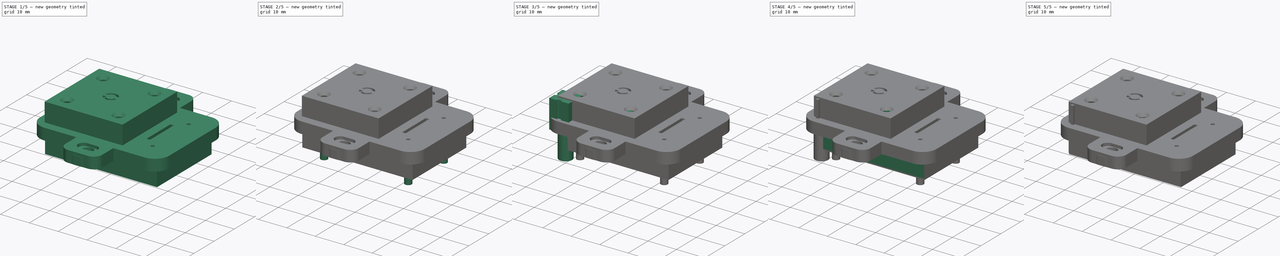
[diagram: build sequence overview — one tinted view per stage of 5, left to right]
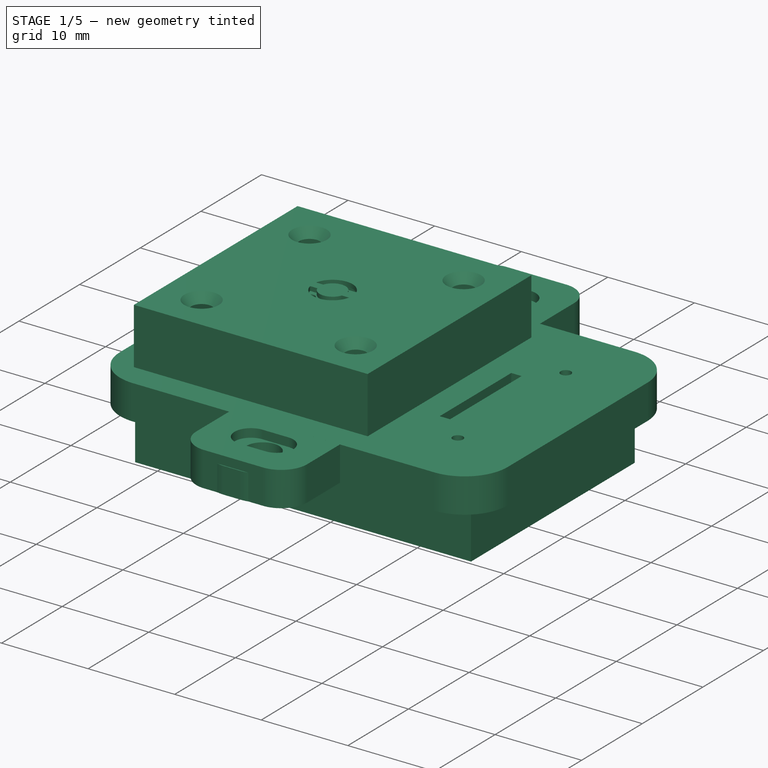
[diagram: stage 1 of 5 — iso view after this stage's code; geometry added in this stage tinted green]
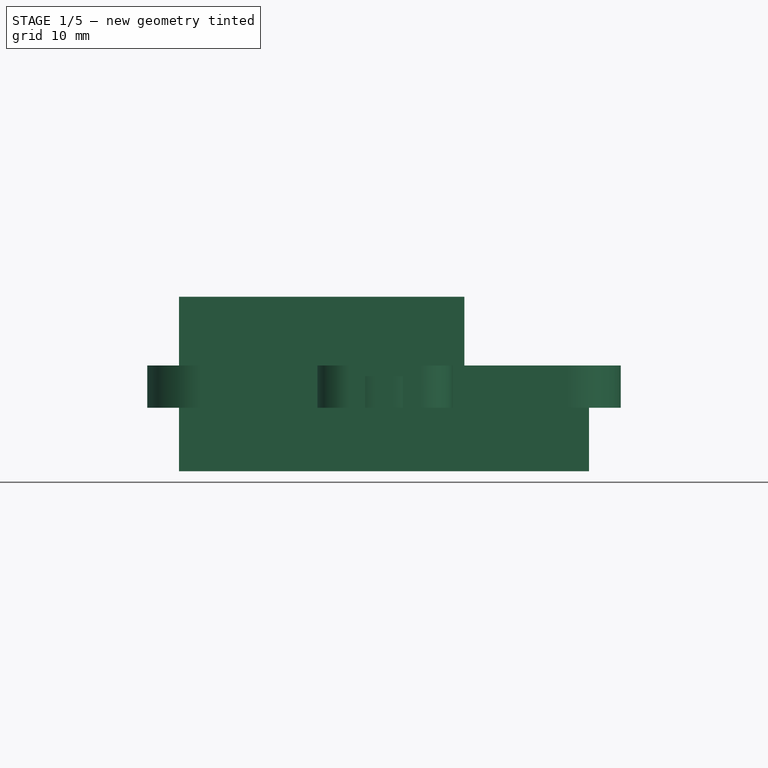
[diagram: stage 1 of 5 — front view after this stage's code; geometry added in this stage tinted green]
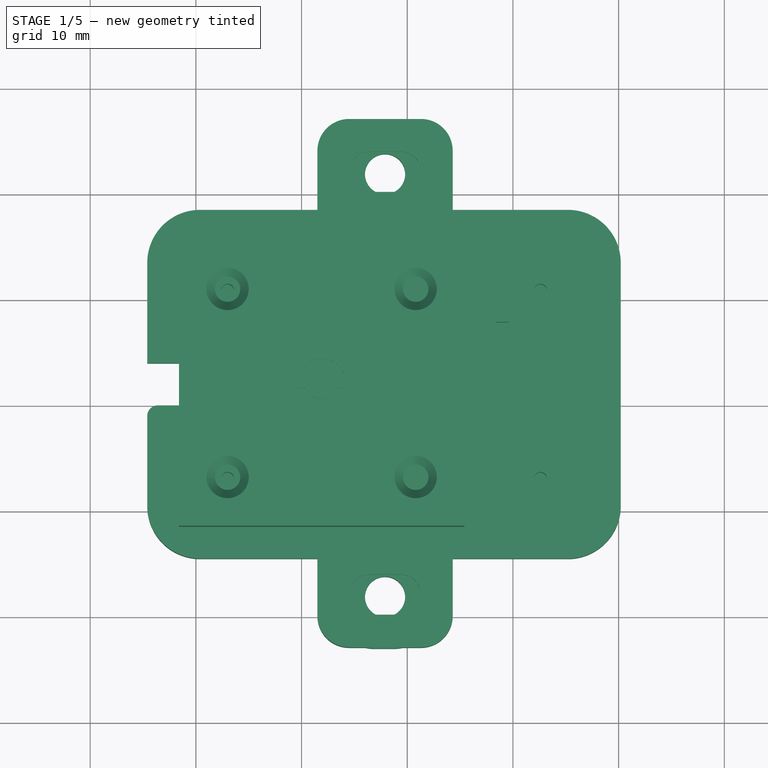
[diagram: stage 1 of 5 — top view after this stage's code; geometry added in this stage tinted green]
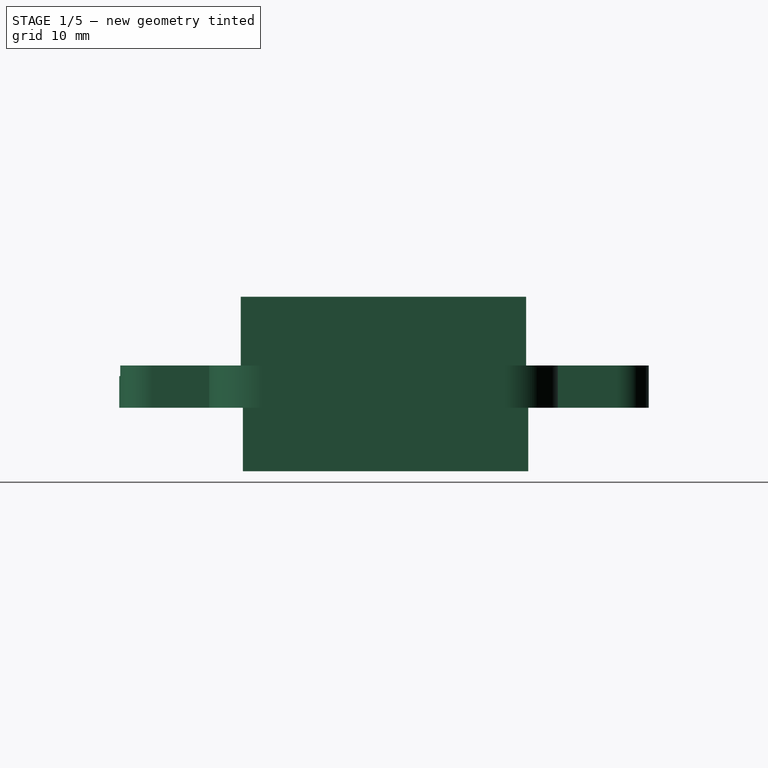
[diagram: stage 1 of 5 — right view after this stage's code; geometry added in this stage tinted green]
FCSTD DOCUMENT  (FreeCAD 0.19R)
Label: btn_plate
License: FreeArt
LicenseURL: http://artlibre.org/licence/lal
objects: Part::Box×17, Part::MultiFuse×15, Part::FeaturePython×12, Part::Cut×9, Part::Cylinder×6, App::Part×5, Part::Feature×5, PartDesign::Body×4, PartDesign::FeatureBase×3, Part::Fillet×3, Spreadsheet::Sheet×1, Sketcher::SketchObject×1, PartDesign::Pad×1, Part::Cone×1
note: 78 computed .brp shape members not serialized (recipe doc carries the construction recipe); baked Part::Feature solids carry a one-line shape summary decoded from their .brp

FEATURE [Part::Cylinder] Cylinder  label="bolt hole"
  Angle = 360
  AttacherType = Attacher::AttachEngine3D
  Height = 10
  Radius = 1.2
  expr: Radius = <<p>>.bolt_hole_r
FEATURE [PartDesign::Body] Body003  label="mesh extraction fusion clone"
  BaseFeature = -> Fusion003
  Group = -> [Clone003]
  Origin = -> Origin007
  Tip = -> Clone003
FEATURE [Part::Box] Box007  label="thin top plate under"
  AttacherType = Attacher::AttachEngine3D
  Height = 0.5
  Length = 36.4
  Placement = pos=(-0.4,-0.4,0) rot=(0,0,1;0rad)
  Width = 24.6
  expr: .Placement.Base.x = -+<<p>>.thin_cover_gap_size
  expr: .Placement.Base.y = -+<<p>>.thin_cover_gap_size
  expr: Height = <<p>>.thin_cover_under
  expr: Length = 2 * <<p>>.side_border + (<<p>>.btn_body_side + <<p>>.inter_btn_dist) * <<p>>.btn_count_x + <<p>>.thin_cover_gap_size * 2
  expr: Width = 2 * <<p>>.side_border + (<<p>>.btn_body_side + <<p>>.inter_btn_dist) * <<p>>.btn_count_y + <<p>>.thin_cover_gap_size * 2
FEATURE [Part::Box] Box012  label="base cube"
  AttacherType = Attacher::AttachEngine3D
  Height = 4
  Length = 44.8
  Placement = pos=(-4.6,-4.6,0) rot=(0,0,1;0rad)
  Width = 33
  expr: .Placement.Base.y = -(<<p>>.base_extra_y / 2 + <<p>>.side_wall)
  expr: .Placement.Base.x = -(<<p>>.base_extra_x / 2 + <<p>>.side_wall)
  expr: Width = <<p>>.outer_border_cube_y + <<p>>.base_extra_y
  expr: Length = <<p>>.outer_border_cube_x + <<p>>.base_extra_x
  expr: Height = <<p>>.base_z
FEATURE [Part::Cylinder] Cylinder007  label="bolt hole002"
  Angle = 360
  AttacherType = Attacher::AttachEngine3D
  Height = 10
  Radius = 0.6
  expr: Radius = <<p>>.hole_r
FEATURE [Part::FeaturePython] Array009  label="bolt hole array002"  # Draft array (typed FeaturePython)
  Angle = 360
  ArrayType = 0
  Axis = (0,0,1)
  Base = -> Cylinder007
  Center = (0,0,0)
  Fuse = false
  IntervalAxis = (0,0,0)
  IntervalX = (29.6,0,0)
  IntervalY = (0,17.8,0)
  IntervalZ = (0,0,1)
  NumberPolar = 1
  NumberX = 2
  NumberY = 2
  NumberZ = 1
  Placement = pos=(3,3,0) rot=(0,0,1;0rad)
  expr: .Placement.Base.y = <<p>>.side_border / 2
  expr: .Placement.Base.x = <<p>>.side_border / 2
  expr: .IntervalY.y = <<p>>.side_border + (<<p>>.btn_body_side + <<p>>.inter_btn_dist) * <<p>>.btn_count_y
  expr: .IntervalX.x = <<p>>.side_border + (<<p>>.btn_body_side + <<p>>.inter_btn_dist) * <<p>>.btn_count_x
FEATURE [Part::Box] Box014  label="base extraction cube"
  AttacherType = Attacher::AttachEngine3D
  Height = 10
  Length = 23.6
  Placement = pos=(6,6,0) rot=(0,0,1;0rad)
  Width = 11.8
  expr: .Placement.Base.y = <<p>>.side_border
  expr: .Placement.Base.x = <<p>>.side_border
  expr: Width = <<p>>.btn_area_y
  expr: Length = <<p>>.btn_area_x
FEATURE [Part::Box] Box015  label="wire channel"
  AttacherType = Attacher::AttachEngine3D
  Height = 10
  Length = 10.6
  Placement = pos=(-4.6,9.9,0) rot=(0,0,1;0rad)
  Width = 4
  expr: Width = <<p>>.wire_channel_width
  expr: .Placement.Base.y = (<<p>>.outer_border_cube_y + <<p>>.base_extra_y - <<p>>.wire_channel_width) / 2 - (<<p>>.base_extra_y / 2 + <<p>>.side_wall)
  expr: .Placement.Base.x = -(<<p>>.base_extra_x / 2 + <<p>>.side_wall)
  expr: Length = (<<p>>.outer_border_cube_x + <<p>>.base_extra_x - <<p>>.btn_area_x) / 2
FEATURE [Part::MultiFuse] Fusion010  label="base extract fusion"
  Shapes = -> [Array009,Box014,Box015]
FEATURE [App::Part] Part001  label="x btn mesh plate part"
  Group = -> [Box005,Array002,Cut001,Fusion001]
  Origin = -> Origin001
FEATURE [Part::Fillet] Fillet  label="base cube fillet"
  Base = -> Box012
  Edges = 4 edges r=5: [Edge1,Edge3,Edge5,Edge7]
FEATURE [App::Part] Part003  label="top cover plate"
  Group = -> [Fusion005]
  Origin = -> Origin005
  Placement = pos=(0,0,5) rot=(0,0,1;0rad)
FEATURE [Part::Feature] Fillet003001  label="base cut fillet001"
  shape: bbox 44.8 x 50 x 4 mm, 46 faces (baked)
FEATURE [Part::Feature] Fusion005001  label="top cover plate fusion001"
  Placement = pos=(0,24,-5) rot=(1,0,0;3.14159rad)
  shape: bbox 38.8 x 27 x 6.5 mm, 37 faces (baked)
FEATURE [Part::MultiFuse] Fusion005002  label="2 buttons mockup"
  Shapes = -> [Fusion005001,Fillet003001]
FEATURE [App::Part] Part004  label="base part"
  Group = -> [Fillet003]
  Origin = -> Origin014
FEATURE [Part::Feature] Fusion005003  label="top cover plate fusion002"
  Placement = pos=(0,0,9.5) rot=(0,0,1;0rad)
  shape: bbox 27 x 27 x 6.5 mm, 29 faces (baked)
FEATURE [Part::Feature] Fillet003002  label="base cut fillet002"
  shape: bbox 33 x 50 x 4 mm, 55 faces (baked)
FEATURE [Part::MultiFuse] Fusion005004  label="1 button mockup"
  Shapes = -> [Fusion005003,Fillet003002]
FEATURE [Part::Cut] Cut002003  label="base cut001"
  Base = -> Fillet
  Tool = -> Fusion010
FEATURE [Part::Fillet] Fillet003003  label="base cut fillet no ears"
  Base = -> Cut002003
  Edges = 4 edges r=1.6: [Edge2,Edge24,Edge49,Edge50]
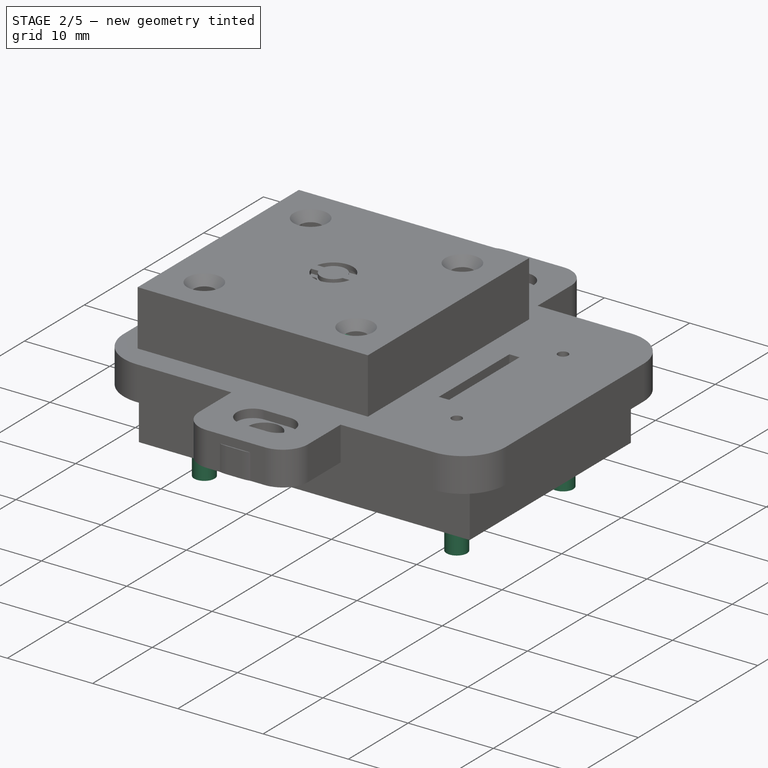
[diagram: stage 2 of 5 — iso view after this stage's code; geometry added in this stage tinted green]
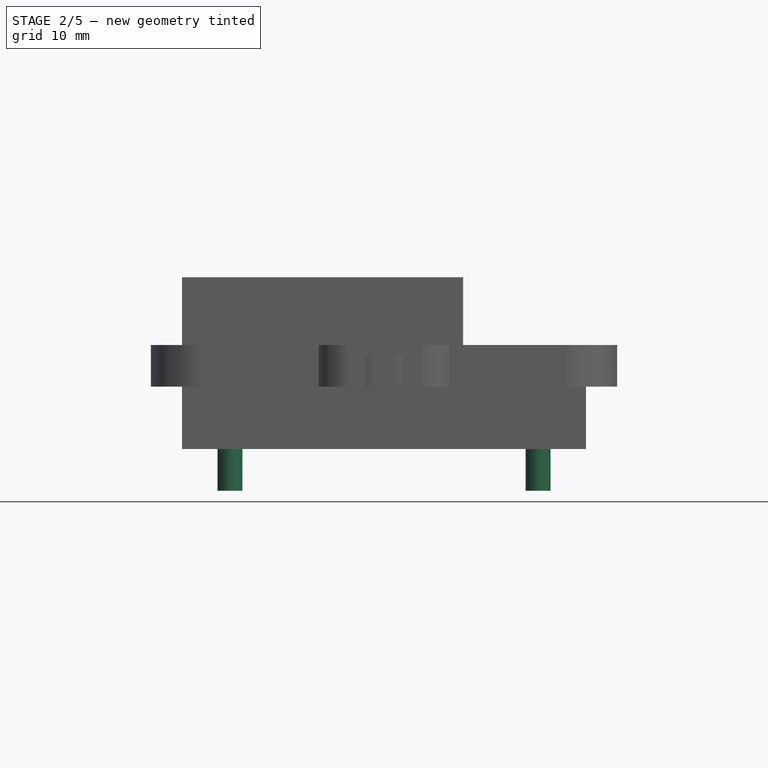
[diagram: stage 2 of 5 — front view after this stage's code; geometry added in this stage tinted green]
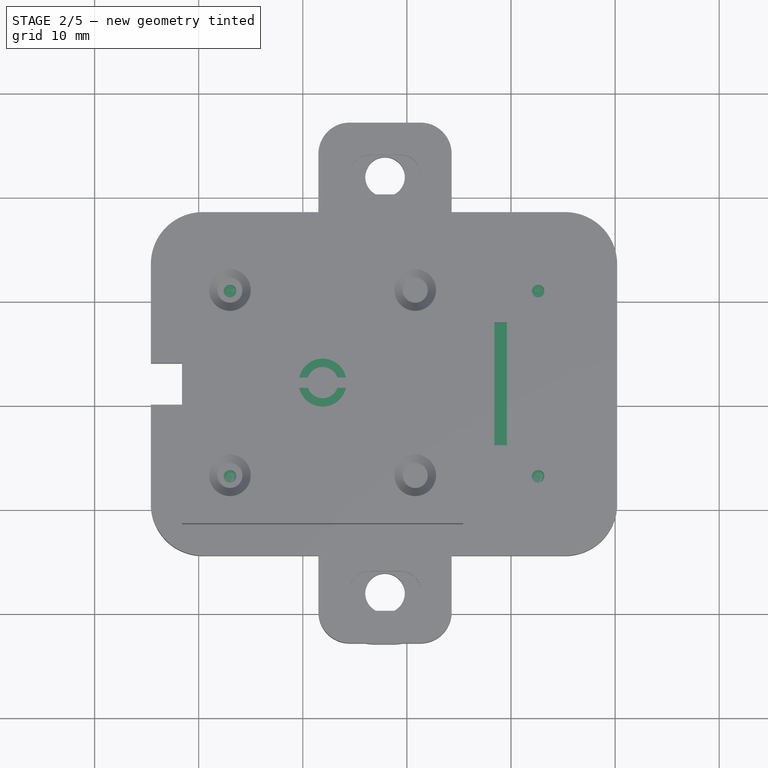
[diagram: stage 2 of 5 — top view after this stage's code; geometry added in this stage tinted green]
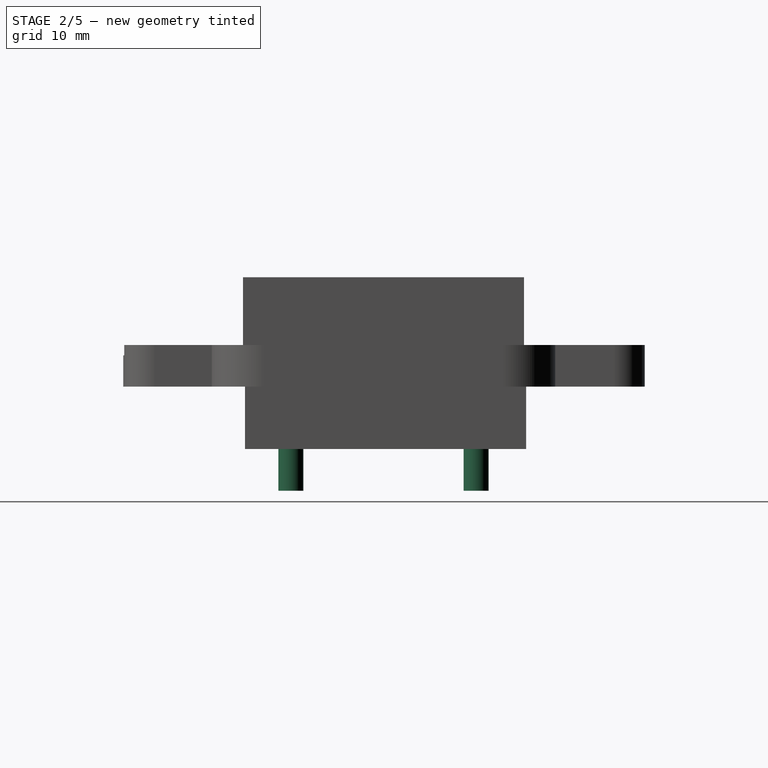
[diagram: stage 2 of 5 — right view after this stage's code; geometry added in this stage tinted green]
FEATURE [Part::FeaturePython] Array001  label="bolt hole array"  # Draft array (typed FeaturePython)
  Angle = 360
  ArrayType = 0
  Axis = (0,0,1)
  Base = -> Cylinder
  Center = (0,0,0)
  Fuse = false
  IntervalAxis = (0,0,0)
  IntervalX = (29.6,0,0)
  IntervalY = (0,17.8,0)
  IntervalZ = (0,0,1)
  NumberPolar = 1
  NumberX = 2
  NumberY = 2
  NumberZ = 1
  Placement = pos=(3,3,0) rot=(0,0,1;0rad)
  expr: .Placement.Base.y = <<p>>.side_border / 2
  expr: .Placement.Base.x = <<p>>.side_border / 2
  expr: .IntervalY.y = <<p>>.side_border + (<<p>>.btn_body_side + <<p>>.inter_btn_dist) * <<p>>.btn_count_y
  expr: .IntervalX.x = <<p>>.side_border + (<<p>>.btn_body_side + <<p>>.inter_btn_dist) * <<p>>.btn_count_x
FEATURE [Part::Box] Box003  label="internal hole cube"
  AttacherType = Attacher::AttachEngine3D
  Height = 10
  Length = 23.6
  Placement = pos=(6,6,0) rot=(0,0,1;0rad)
  Width = 11.8
  expr: .Placement.Base.y = <<p>>.side_border
  expr: .Placement.Base.x = <<p>>.side_border
  expr: Length = <<p>>.btn_area_x
  expr: Width = <<p>>.btn_area_y
FEATURE [PartDesign::FeatureBase] Clone001
  BaseFeature = -> Array001
  Placement = pos=(3,3,0) rot=(0,0,1;0rad)
  expr: .Placement.Base.x = <<p>>.side_border / 2
  expr: .Placement.Base.y = <<p>>.side_border / 2
FEATURE [PartDesign::Body] Body001  label="bolt hole array clone"
  BaseFeature = -> Array001
  Group = -> [Clone001]
  Origin = -> Origin004
  Tip = -> Clone001
FEATURE [Part::MultiFuse] Fusion003  label="mesh extraction fusion"
  Shapes = -> [Box003,Body001]
FEATURE [PartDesign::Body] Body  label="mesh border cut clone"
  BaseFeature = -> Cut001
  Group = -> [Clone]
  Origin = -> Origin002
  Tip = -> Clone
FEATURE [Part::Box] Box006  label="thin top plate"
  AttacherType = Attacher::AttachEngine3D
  Height = 0.5
  Length = 36.4
  Placement = pos=(-0.4,-0.4,0.5) rot=(0,0,1;0rad)
  Width = 24.6
  expr: .Placement.Base.y = -+<<p>>.thin_cover_gap_size
  expr: .Placement.Base.x = -+<<p>>.thin_cover_gap_size
  expr: .Placement.Base.z = <<p>>.thin_cover_under
  expr: Height = <<p>>.thin_cover_z
  expr: Length = 2 * <<p>>.side_border + (<<p>>.btn_body_side + <<p>>.inter_btn_dist) * <<p>>.btn_count_x + <<p>>.thin_cover_gap_size * 2
  expr: Width = 2 * <<p>>.side_border + (<<p>>.btn_body_side + <<p>>.inter_btn_dist) * <<p>>.btn_count_y + <<p>>.thin_cover_gap_size * 2
FEATURE [PartDesign::FeatureBase] Clone003
  BaseFeature = -> Fusion003
FEATURE [Part::Cut] Cut003  label="thin top plate border cut"
  Base = -> Box007
  Tool = -> Body003
FEATURE [Part::Cone] Cone
  Angle = 360
  AttacherType = Attacher::AttachEngine3D
  Height = 1
  Radius1 = 1.2
  Radius2 = 2
  expr: Height = <<p>>.bolt_head_z
  expr: Radius2 = <<p>>.bolt_head_r
  expr: Radius1 = <<p>>.bolt_hole_r
FEATURE [Part::Cylinder] Cylinder008  label="bolt hole003"
  Angle = 360
  AttacherType = Attacher::AttachEngine3D
  Height = 10
  Placement = pos=(0,0,-10) rot=(0,0,1;0rad)
  Radius = 1.2
  expr: .Placement.Base.z = -10
  expr: Radius = <<p>>.bolt_hole_r
FEATURE [Part::MultiFuse] Fusion011  label="bolt top fusion"
  Shapes = -> [Cone,Cylinder008]
FEATURE [Part::FeaturePython] Array012  label="bolt hole fusion array"  # Draft array (typed FeaturePython)
  Angle = 360
  ArrayType = 0
  Axis = (0,0,1)
  Base = -> Fusion011
  Center = (0,0,0)
  Fuse = false
  IntervalAxis = (0,0,0)
  IntervalX = (29.6,0,0)
  IntervalY = (0,17.8,0)
  IntervalZ = (0,0,1)
  NumberPolar = 1
  NumberX = 2
  NumberY = 2
  NumberZ = 1
  Placement = pos=(3,3,0) rot=(0,0,1;0rad)
  expr: .Placement.Base.y = <<p>>.side_border / 2
  expr: .Placement.Base.x = <<p>>.side_border / 2
  expr: .IntervalY.y = <<p>>.side_border + (<<p>>.btn_body_side + <<p>>.inter_btn_dist) * <<p>>.btn_count_y
  expr: .IntervalX.x = <<p>>.side_border + (<<p>>.btn_body_side + <<p>>.inter_btn_dist) * <<p>>.btn_count_x
FEATURE [Part::MultiFuse] Fusion012  label="thin top plate fusion"
  Shapes = -> [Cut003,Box006]
FEATURE [Part::Feature] Cut002002  label="attach plane y dir002"
  Placement = pos=(11.5,-13,0) rot=(0,0,1;0rad)
  shape: bbox 12.8 x 50 x 4 mm, 20 faces (baked)
FEATURE [Part::MultiFuse] Fusion009  label="base fusion"
  Shapes = -> [Fillet,Cut002002]
FEATURE [Part::Cut] Cut008  label="base cut"
  Base = -> Fusion009
  Tool = -> Fusion010
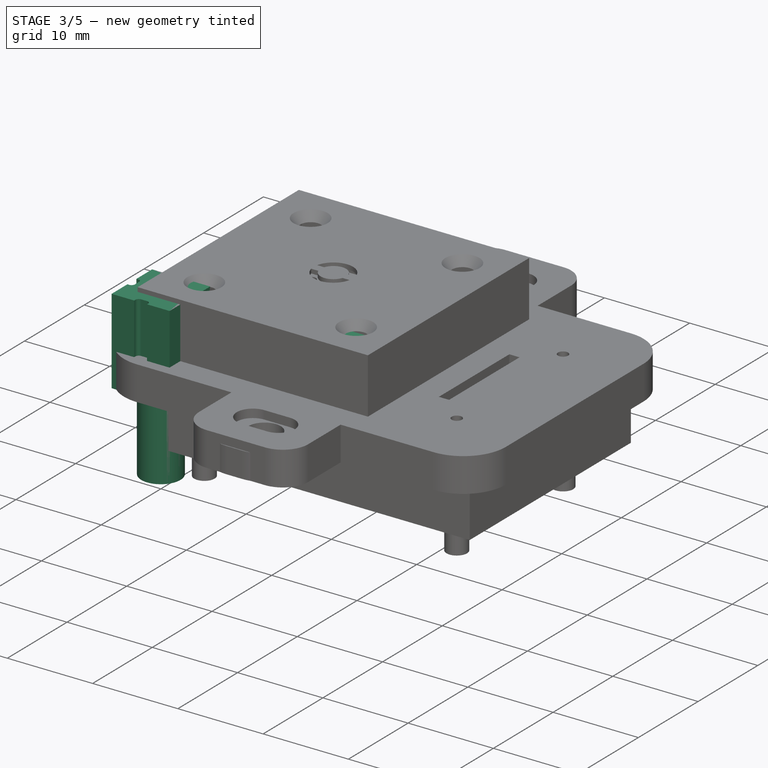
[diagram: stage 3 of 5 — iso view after this stage's code; geometry added in this stage tinted green]
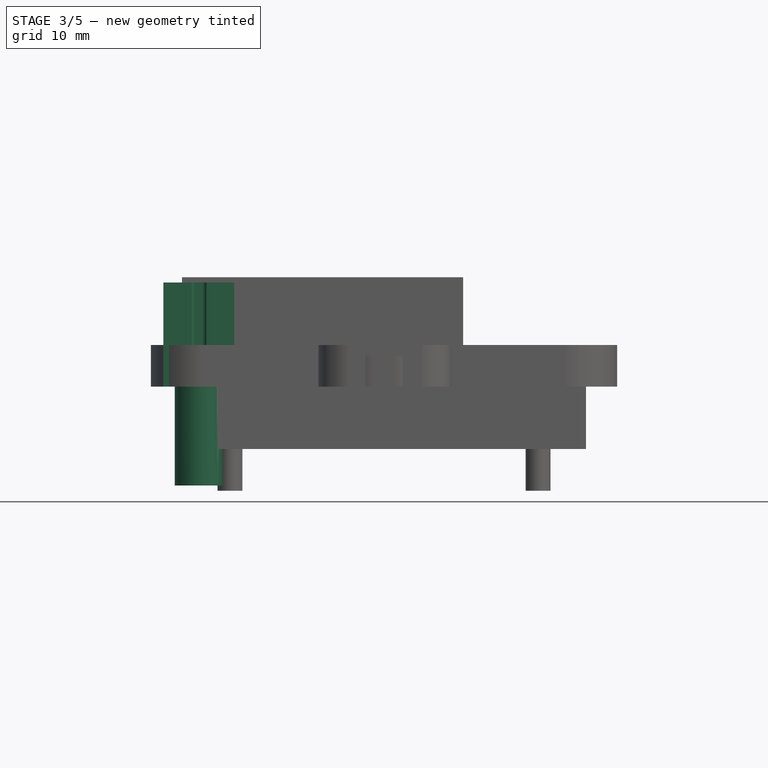
[diagram: stage 3 of 5 — front view after this stage's code; geometry added in this stage tinted green]
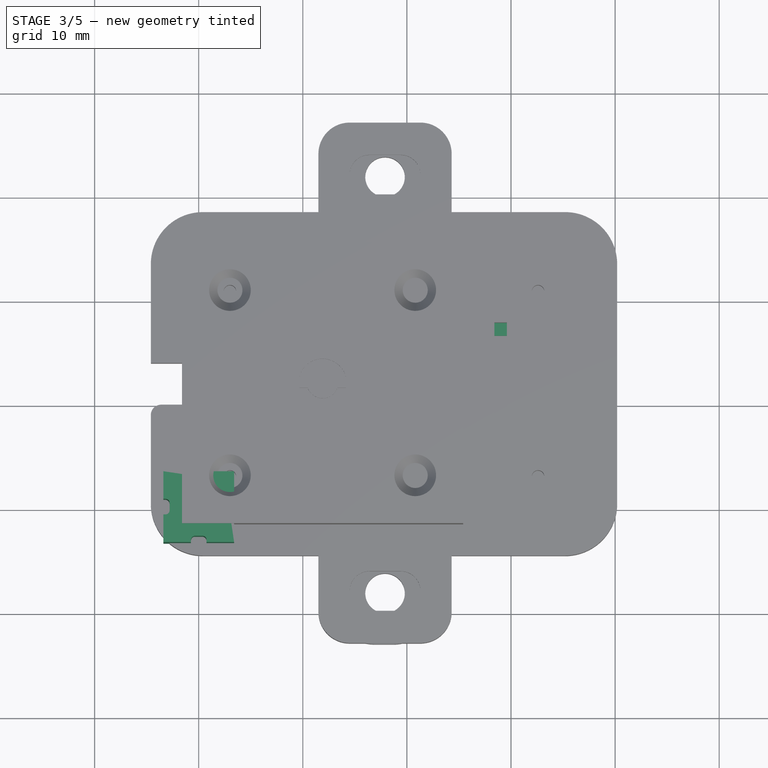
[diagram: stage 3 of 5 — top view after this stage's code; geometry added in this stage tinted green]
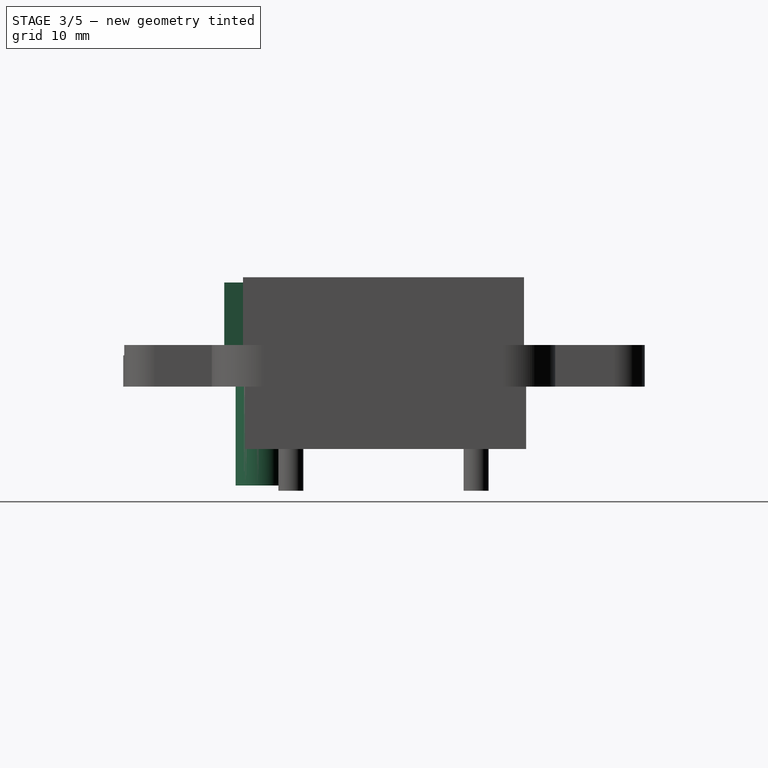
[diagram: stage 3 of 5 — right view after this stage's code; geometry added in this stage tinted green]
FEATURE [Part::Cylinder] Cylinder002  label="bolt hole001"
  Angle = 360
  AttacherType = Attacher::AttachEngine3D
  Height = 10
  Radius = 1.2
  expr: Radius = <<p>>.bolt_hole_r
FEATURE [Sketcher::SketchObject] Sketch001
  FullyConstrained = true
  MapMode = 5
  Support = -> [XY_Plane013]
  expr: Constraints[64] = <<p>>.btn_holding_pin_size
  expr: Constraints[63] = <<p>>.btn_holding_pin_size
  expr: Constraints[4] = <<p>>.btn_body_side / 2
  expr: Constraints[3] = <<p>>.btn_body_side / 2
  expr: Constraints[5] = (<<p>>.btn_body_side - <<p>>.btn_holding_pin_width) / 2
  sketch-geometry (28):
    g0: LineSegment StartX=-3.4 StartY=-0.75 StartZ=0 EndX=-3.4 EndY=-3.4 EndZ=0
    g1: LineSegment StartX=-3.4 StartY=-3.4 StartZ=0 EndX=-0.75 EndY=-3.4 EndZ=0
    g2: LineSegment StartX=-3.4 StartY=0.75 StartZ=0 EndX=-3.4 EndY=3.4 EndZ=0
    g3: LineSegment StartX=-3.4 StartY=3.4 StartZ=0 EndX=-0.75 EndY=3.4 EndZ=0
    g4: LineSegment StartX=0.75 StartY=3.4 StartZ=0 EndX=3.4 EndY=3.4 EndZ=0
    g5: LineSegment StartX=3.4 StartY=3.4 StartZ=0 EndX=3.4 EndY=0.75 EndZ=0
    g6: LineSegment StartX=3.4 StartY=-0.75 StartZ=0 EndX=3.4 EndY=-3.4 EndZ=0
    g7: LineSegment StartX=3.4 StartY=-3.4 StartZ=0 EndX=0.75 EndY=-3.4 EndZ=0
    g8: LineSegment StartX=-3.4 StartY=0.75 StartZ=0 EndX=-3.19743 EndY=0.75 EndZ=0
    g9: LineSegment StartX=-2.8 StartY=0.352575 StartZ=0 EndX=-2.8 EndY=-0.352575 EndZ=0
    g10: LineSegment StartX=-3.19743 StartY=-0.75 StartZ=0 EndX=-3.4 EndY=-0.75 EndZ=0
    g11: ArcOfCircle CenterX=-3.19743 CenterY=0.352575 CenterZ=0 NormalX=0 NormalY=0 NormalZ=1 AngleXU=0 Radius=0.397425 StartAngle=0 EndAngle=1.5708
    g12: ArcOfCircle CenterX=-3.19743 CenterY=-0.352575 CenterZ=0 NormalX=0 NormalY=0 NormalZ=1 AngleXU=0 Radius=0.397425 StartAngle=4.71239 EndAngle=6.28319
    g13: LineSegment StartX=3.4 StartY=0.75 StartZ=0 EndX=3.19743 EndY=0.75 EndZ=0
    g14: LineSegment StartX=2.8 StartY=0.352575 StartZ=0 EndX=2.8 EndY=-0.352575 EndZ=0
    g15: LineSegment StartX=3.19743 StartY=-0.75 StartZ=0 EndX=3.4 EndY=-0.75 EndZ=0
    g16: LineSegment StartX=0.75 StartY=3.4 StartZ=0 EndX=0.75 EndY=3.19743 EndZ=0
    g17: LineSegment StartX=0.352575 StartY=2.8 StartZ=0 EndX=-0.352575 EndY=2.8 EndZ=0
    g18: LineSegment StartX=-0.75 StartY=3.19743 StartZ=0 EndX=-0.75 EndY=3.4 EndZ=0
    g19: LineSegment StartX=-0.75 StartY=-3.4 StartZ=0 EndX=-0.75 EndY=-3.19743 EndZ=0
    g20: LineSegment StartX=-0.352575 StartY=-2.8 StartZ=0 EndX=0.352575 EndY=-2.8 EndZ=0
    g21: LineSegment StartX=0.75 StartY=-3.19743 StartZ=0 EndX=0.75 EndY=-3.4 EndZ=0
    g22: ArcOfCircle CenterX=3.19743 CenterY=0.352575 CenterZ=0 NormalX=0 NormalY=0 NormalZ=1 AngleXU=0 Radius=0.397425 StartAngle=1.5708 EndAngle=3.14159
    g23: ArcOfCircle CenterX=3.19743 CenterY=-0.352575 CenterZ=0 NormalX=0 NormalY=0 NormalZ=1 AngleXU=0 Radius=0.397425 StartAngle=3.14159 EndAngle=4.71239
    g24: ArcOfCircle CenterX=0.352575 CenterY=-3.19743 CenterZ=0 NormalX=0 NormalY=0 NormalZ=1 AngleXU=0 Radius=0.397425 StartAngle=1.8e-15 EndAngle=1.5708
    g25: ArcOfCircle CenterX=-0.352575 CenterY=-3.19743 CenterZ=0 NormalX=0 NormalY=0 NormalZ=1 AngleXU=0 Radius=0.397425 StartAngle=1.5708 EndAngle=3.14159
    g26: ArcOfCircle CenterX=-0.352575 CenterY=3.19743 CenterZ=0 NormalX=0 NormalY=0 NormalZ=1 AngleXU=0 Radius=0.397425 StartAngle=3.14159 EndAngle=4.71239
    g27: ArcOfCircle CenterX=0.352575 CenterY=3.19743 CenterZ=0 NormalX=0 NormalY=0 NormalZ=1 AngleXU=0 Radius=0.397425 StartAngle=4.71239 EndAngle=6.28319
  constraints (65):
    c: Coincident(g0,g1)
    c: Horizontal(g1)
    c: Vertical(g0)
    c: DistanceY(g1,g-1) = 3.4
    c: DistanceX(g0,g-1) = 3.4
    c: DistanceY(g0,g0) = 2.65
    c: Coincident(g2,g3)
    c: Horizontal(g3)
    c: Coincident(g4,g5)
    c: Vertical(g5)
    c: Coincident(g6,g7)
    c: Symmetric(g7,g1,g-2)
    c: Symmetric(g5,g6,g-1)
    c: Symmetric(g4,g3,g-2)
    c: Symmetric(g2,g0,g-1)
    c: Symmetric(g6,g0,g-2)
    c: Equal(g0,g1)
    c: Equal(g1,g2)
    c: Equal(g2,g3)
    c: Equal(g3,g4)
    c: Equal(g4,g5)
    c: Equal(g5,g6)
    c: Equal(g6,g7)
    c: Coincident(g2,g8)
    c: Coincident(g10,g0)
    c: Horizontal(g10)
    c: Tangent(g9,g11) = 1.5708
    c: Tangent(g8,g11) = 1.5708
    c: Tangent(g10,g12) = 1.5708
    c: Tangent(g9,g12) = 1.5708
    c: Symmetric(g9,g9,g-1)
    c: Equal(g10,g8)
    c: Coincident(g5,g13)
    c: Horizontal(g13)
    c: Vertical(g14)
    c: Coincident(g15,g6)
    c: Coincident(g4,g16)
    c: Coincident(g18,g3)
    c: Coincident(g1,g19)
    c: Horizontal(g20)
    c: Coincident(g21,g7)
    c: Tangent(g13,g22) = -1.5708
    c: Tangent(g14,g22) = -1.5708
    c: Tangent(g15,g23) = -1.5708
    c: Tangent(g14,g23) = -1.5708
    c: Tangent(g20,g24) = 1.5708
    c: Tangent(g21,g24) = 1.5708
    c: Tangent(g19,g25) = 1.5708
    c: Tangent(g20,g25) = 1.5708
    c: Tangent(g17,g26) = 1.5708
    c: Tangent(g18,g26) = 1.5708
    c: Tangent(g16,g27) = 1.5708
    c: Tangent(g17,g27) = 1.5708
    c: Symmetric(g9,g14,g-2)
    c: Symmetric(g15,g13,g-1)
    c: Symmetric(g17,g20,g-1)
    c: Symmetric(g16,g18,g-2)
    c: Symmetric(g19,g21,g-2)
    c: Vertical(g18)
    c: Equal(g8,g18)
    c: Equal(g18,g21)
    c: Equal(g11,g26)
    c: Equal(g22,g24)
    c: DistanceX(g0,g9) = 0.6
    c: DistanceY(g7,g20) = 0.6
FEATURE [PartDesign::Pad] Pad
  AllowMultiFace = false
  Direction = (1,1,1)
  Length = 10
  Length2 = 100
  Profile = -> Sketch001
  Type = 0
FEATURE [App::Part] Part  label="btn middle plate part"
  Group = -> [Box001,Box,Cylinder,Fusion,Array,Array001,Cut,Array006,Array005,Fusion006,Cylinder002,Box010,Body006,Cut005,Fusion007]
  Origin = -> Origin
  Placement = pos=(0,0,2) rot=(0,0,1;0rad)
FEATURE [Part::Box] Box011  label="btn cross line"
  AttacherType = Attacher::AttachEngine3D
  Height = 10
  Length = 4.6
  Placement = pos=(-2.3,-0.5,0) rot=(0,0,1;0rad)
  Width = 1
  expr: .Placement.Base.y = -<<p>>.btn_cross_line_size / 2
  expr: .Placement.Base.x = -<<p>>.btn_hole_r
  expr: Length = <<p>>.btn_hole_r * 2
  expr: Width = <<p>>.btn_cross_line_size
FEATURE [Part::FeaturePython] Array007  label="btn cross line array"  # Draft array (typed FeaturePython)
  Angle = 90
  ArrayType = 1
  Axis = (0,0,1)
  Base = -> Box011
  Center = (0,0,0)
  Fuse = false
  IntervalAxis = (0,0,0)
  IntervalX = (1,0,0)
  IntervalY = (0,1,0)
  IntervalZ = (0,0,1)
  NumberPolar = 2
  NumberX = 1
  NumberY = 1
  NumberZ = 1
FEATURE [Part::Cylinder] Cylinder004  label="btn round hole center"
  Angle = 360
  AttacherType = Attacher::AttachEngine3D
  Height = 10
  Radius = 1.5
FEATURE [Part::Cylinder] Cylinder005  label="btn round hole001"
  Angle = 360
  AttacherType = Attacher::AttachEngine3D
  Height = 10
  Placement = pos=(0,0,-9.5) rot=(0,0,1;0rad)
  Radius = 2.3
  expr: Radius = <<p>>.btn_hole_r
  expr: .Placement.Base.z = -Height + 0.5mm
FEATURE [Part::MultiFuse] Fusion008  label="btn line center fusion"
  Shapes = -> [Cylinder004,Box011]
FEATURE [Part::Cut] Cut006  label="btn round hole cut"
  Base = -> Cylinder005
  Tool = -> Fusion008
FEATURE [Part::Box] Box016  label="x btn holder001"
  AttacherType = Attacher::AttachEngine3D
  Height = 1.5
  Length = 35.6
  Width = 2.5
  expr: Width = <<p>>.holding_w
  expr: Length = 2 * <<p>>.side_border + <<p>>.btn_area_x
  expr: Height = <<p>>.holding_plate_z
FEATURE [Part::FeaturePython] Array010  label="x btn holder array001"  # Draft array (typed FeaturePython)
  Angle = 360
  ArrayType = 0
  Axis = (0,0,1)
  Base = -> Box016
  Center = (0,0,0)
  Fuse = false
  IntervalAxis = (0,0,0)
  IntervalX = (1,0,0)
  IntervalY = (0,11.8,0)
  IntervalZ = (0,0,1)
  NumberPolar = 1
  NumberX = 1
  NumberY = 0
  NumberZ = 1
  Placement = pos=(0,16.55,0) rot=(0,0,1;0rad)
  expr: .Placement.Base.y = <<p>>.side_border + <<p>>.inter_btn_dist + <<p>>.btn_body_side - <<p>>.holding_w / 2
  expr: NumberY = <<p>>.btn_count_y - 1
  expr: .IntervalY.y = <<p>>.btn_body_side + <<p>>.inter_btn_dist
FEATURE [App::Part] Part002  label="y btn mesh plate part"
  Group = -> [Body,Box004,Array003,Fusion002]
  Origin = -> Origin003
FEATURE [Part::Box] Box017  label="y btn holder001"
  AttacherType = Attacher::AttachEngine3D
  Height = 1.5
  Length = 2.5
  Width = 23.8
  expr: Length = <<p>>.holding_w
  expr: Width = 2 * <<p>>.side_border + <<p>>.btn_area_y
  expr: Height = <<p>>.holding_plate_z
FEATURE [Part::FeaturePython] Array011  label="y btn holder array001"  # Draft array (typed FeaturePython)
  Angle = 360
  ArrayType = 0
  Axis = (0,0,1)
  Base = -> Box017
  Center = (0,0,0)
  Fuse = false
  IntervalAxis = (0,0,0)
  IntervalX = (11.8,0,0)
  IntervalY = (0,1,0)
  IntervalZ = (0,0,1)
  NumberPolar = 1
  NumberX = 1
  NumberY = 1
  NumberZ = 1
  Placement = pos=(16.55,0,0) rot=(0,0,1;0rad)
  expr: .Placement.Base.x = <<p>>.side_border + <<p>>.inter_btn_dist + <<p>>.btn_body_side - <<p>>.holding_w / 2
  expr: NumberX = <<p>>.btn_count_x - 1
  expr: .IntervalX.x = <<p>>.btn_body_side + <<p>>.inter_btn_dist
FEATURE [Part::Fillet] Fillet003  label="base cut fillet"
  Base = -> Cut008
  Edges = 4 edges r=1: [Edge2,Edge12,Edge112,Edge135]
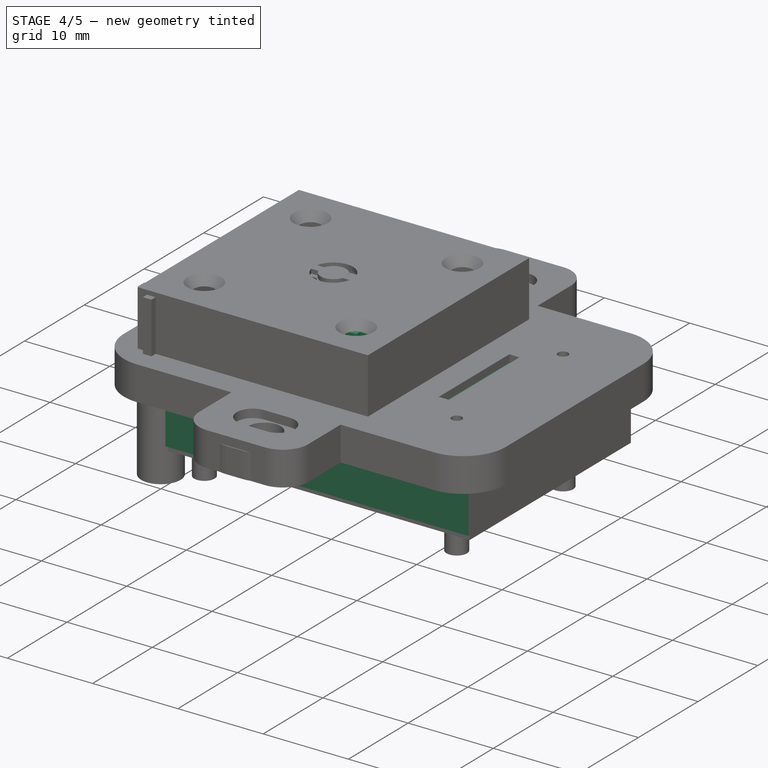
[diagram: stage 4 of 5 — iso view after this stage's code; geometry added in this stage tinted green]
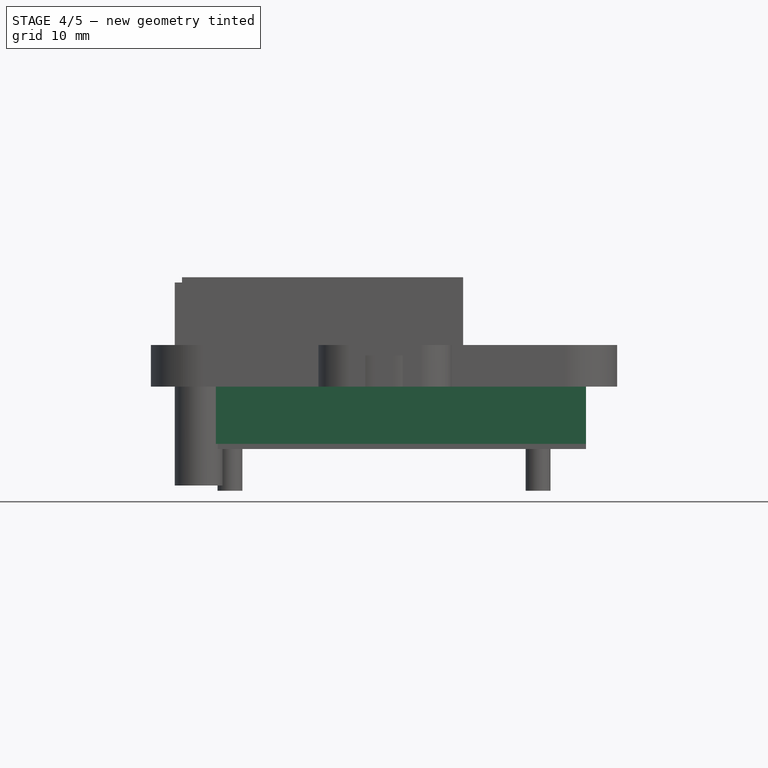
[diagram: stage 4 of 5 — front view after this stage's code; geometry added in this stage tinted green]
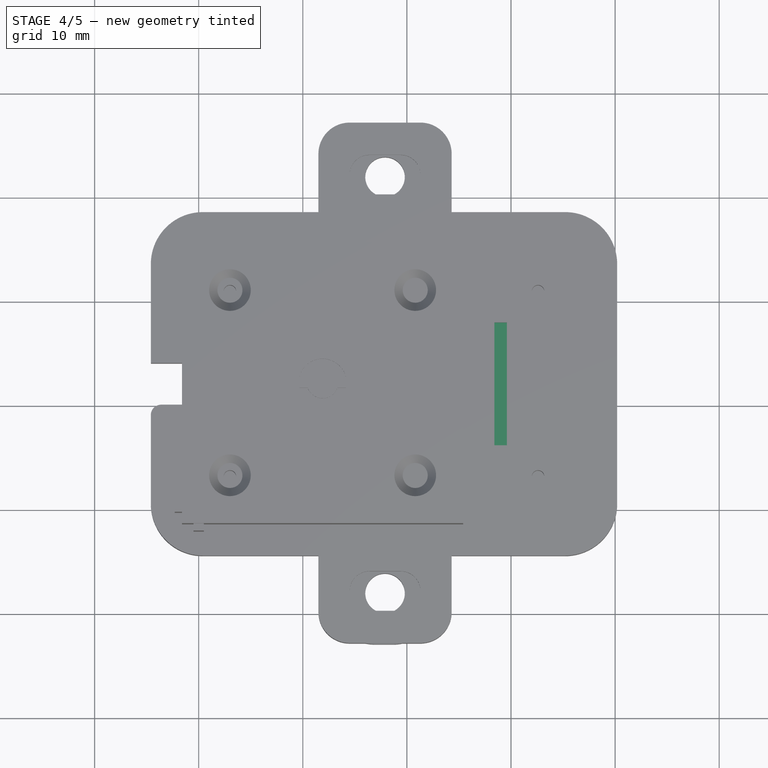
[diagram: stage 4 of 5 — top view after this stage's code; geometry added in this stage tinted green]
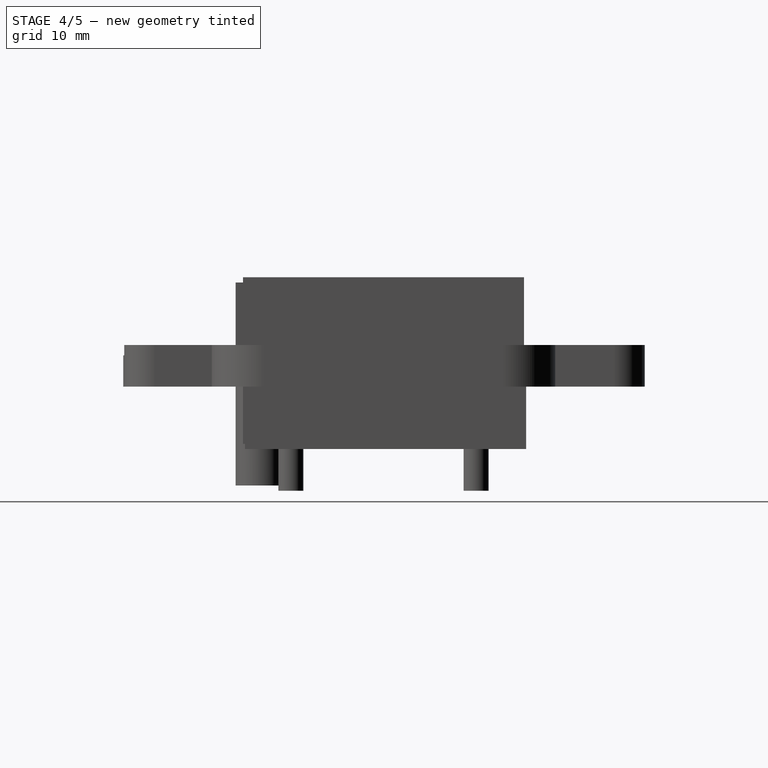
[diagram: stage 4 of 5 — right view after this stage's code; geometry added in this stage tinted green]
FEATURE [Part::Box] Box  label="middle_plate"
  AttacherType = Attacher::AttachEngine3D
  Height = 2.5
  Length = 35.6
  Width = 23.8
  expr: Length = 2 * <<p>>.side_border + (<<p>>.btn_body_side + <<p>>.inter_btn_dist) * <<p>>.btn_count_x
  expr: Width = 2 * <<p>>.side_border + (<<p>>.btn_body_side + <<p>>.inter_btn_dist) * <<p>>.btn_count_y
  expr: Height = <<p>>.btn_middle_plate_z
FEATURE [Spreadsheet::Sheet] Spreadsheet  label="p"
  cells = A1=btn_body_side; B1(btn_body_side)=6.8; D1=outer_border_cube_x; E1(outer_border_cube_x)==2 * side_border + (btn_body_side + inter_btn_dist) * btn_count_x + side_wall * 2; A2=btn_holding_pin_size; B2(btn_holding_pin_size)=0.6; D2=outer_border_cube_y; E2(outer_border_cube_y)==2 * side_border + (btn_body_side + inter_btn_dist) * btn_count_y + 2 * side_wall; A3=btn_holding_pin_width; B3(btn_holding_pin_width)=1.5; D3=btn_area_x; E3(btn_area_x)==(btn_body_side + inter_btn_dist) * btn_count_x; A4=btn_middle_plate_z; B4(btn_middle_plate_z)=2.5; D4=btn_area_y; E4(btn_area_y)==(btn_body_side + inter_btn_dist) * btn_count_y; A5=holding_w; B5(holding_w)=2.5; D5=wire_channel_width; E5(wire_channel_width)=4; A6=holding_plate_z; B6(holding_plate_z)=1.5; A7=holding_plate_extra_border_z; B7(holding_plate_extra_border_z)=1; A8=holding_plate_under_gap; B8(holding_plate_under_gap)=0.5; A9=btn_hole_r; B9(btn_hole_r)=2.3; A10=btn_cross_line_size; B10(btn_cross_line_size)=1; A11=inter_btn_dist; B11(inter_btn_dist)=5; A12=side_border; B12(side_border)=6; A13=btn_count_x; B13(btn_count_x)=2; A14=btn_count_y; B14(btn_count_y)=1; A15=bolt_hole_r; B15(bolt_hole_r)=1.2; A16=hole_r; B16(hole_r)=0.6; A17=bolt_head_r; B17(bolt_head_r)=2; A18=bolt_head_z; B18(bolt_head_z)=1; A19=thin_cover_z; B19(thin_cover_z)=0.5; A20=thin_cover_under; B20(thin_cover_under)=0.5; A21=thin_cover_gap_size; B21(thin_cover_gap_size)=0.4; A22=side_wall; B22(side_wall)=1.6; A23=base_extra_x; B23(base_extra_x)=6; A24=base_extra_y; B24(base_extra_y)=6; A25=base_z; B25(base_z)=4; A26=attach_hole_dist; B26(attach_hole_dist)=10; A27=attach_hole_r; B27(attach_hole_r)=1.9; A28=attach_hole_wall; B28(attach_hole_wall)=3; A29=attach_z; B29(attach_z)=3
FEATURE [Part::Box] Box001  label="btn body hole"
  AttacherType = Attacher::AttachEngine3D
  Height = 10
  Length = 6.8
  Width = 6.8
  expr: Width = <<p>>.btn_body_side
  expr: Length = <<p>>.btn_body_side
FEATURE [Part::FeaturePython] Array  label="btn body hole array"  # Draft array (typed FeaturePython)
  Angle = 360
  ArrayType = 0
  Axis = (0,0,1)
  Base = -> Box001
  Center = (0,0,0)
  Fuse = false
  IntervalAxis = (0,0,0)
  IntervalX = (11.8,0,0)
  IntervalY = (0,11.8,0)
  IntervalZ = (0,0,1)
  NumberPolar = 1
  NumberX = 2
  NumberY = 1
  NumberZ = 1
  Placement = pos=(8.5,8.5,0) rot=(0,0,1;0rad)
  expr: NumberY = <<p>>.btn_count_y
  expr: NumberX = <<p>>.btn_count_x
  expr: .Placement.Base.y = <<p>>.side_border + <<p>>.inter_btn_dist / 2
  expr: .Placement.Base.x = <<p>>.side_border + <<p>>.inter_btn_dist / 2
  expr: .IntervalY.y = <<p>>.btn_body_side + <<p>>.inter_btn_dist
  expr: .IntervalX.x = <<p>>.btn_body_side + <<p>>.inter_btn_dist
FEATURE [Part::MultiFuse] Fusion  label="hole fusion"
  Shapes = -> [Array,Array001]
FEATURE [Part::Cut] Cut  label="btn middle plate cut"
  Base = -> Box
  Tool = -> Fusion
FEATURE [Part::Box] Box008  label="outer wall cube"
  AttacherType = Attacher::AttachEngine3D
  Height = 6.5
  Length = 38.8
  Placement = pos=(-1.6,-1.6,0) rot=(0,0,1;0rad)
  Width = 27
  expr: .Placement.Base.y = -<<p>>.side_wall
  expr: .Placement.Base.x = -<<p>>.side_wall
  expr: Height = <<p>>.thin_cover_z + <<p>>.thin_cover_under + <<p>>.btn_middle_plate_z + <<p>>.holding_plate_z + <<p>>.holding_plate_extra_border_z + <<p>>.holding_plate_under_gap
  expr: Width = <<p>>.outer_border_cube_y
  expr: Length = <<p>>.outer_border_cube_x
FEATURE [Part::Box] Box009  label="outer wall hole cube"
  AttacherType = Attacher::AttachEngine3D
  Height = 6.5
  Length = 36.4
  Placement = pos=(-0.4,-0.4,0) rot=(0,0,1;0rad)
  Width = 24.6
  expr: .Placement.Base.y = -+<<p>>.thin_cover_gap_size
  expr: .Placement.Base.x = -+<<p>>.thin_cover_gap_size
  expr: Height = <<p>>.thin_cover_z + <<p>>.thin_cover_under + <<p>>.btn_middle_plate_z + <<p>>.holding_plate_z + <<p>>.holding_plate_extra_border_z + <<p>>.holding_plate_under_gap
  expr: Width = 2 * <<p>>.side_border + (<<p>>.btn_body_side + <<p>>.inter_btn_dist) * <<p>>.btn_count_y + <<p>>.thin_cover_gap_size * 2
  expr: Length = 2 * <<p>>.side_border + (<<p>>.btn_body_side + <<p>>.inter_btn_dist) * <<p>>.btn_count_x + <<p>>.thin_cover_gap_size * 2
FEATURE [Part::Cut] Cut004  label="outer wall cut"
  Base = -> Box008
  Placement = pos=(0,0,-5.5) rot=(0,0,1;0rad)
  Tool = -> Box009
  expr: .Placement.Base.z = -(<<p>>.btn_middle_plate_z + <<p>>.holding_plate_z + <<p>>.holding_plate_extra_border_z + <<p>>.holding_plate_under_gap)
FEATURE [Part::Box] Box010  label="middle_plate001"
  AttacherType = Attacher::AttachEngine3D
  Height = 0.6
  Length = 35.6
  Width = 23.8
  expr: Length = 2 * <<p>>.side_border + (<<p>>.btn_body_side + <<p>>.inter_btn_dist) * <<p>>.btn_count_x
  expr: Width = 2 * <<p>>.side_border + (<<p>>.btn_body_side + <<p>>.inter_btn_dist) * <<p>>.btn_count_y
  expr: Height = <<p>>.btn_holding_pin_size
FEATURE [Part::FeaturePython] Array006  label="bolt hole array003"  # Draft array (typed FeaturePython)
  Angle = 360
  ArrayType = 0
  Axis = (0,0,1)
  Base = -> Cylinder002
  Center = (0,0,0)
  Fuse = false
  IntervalAxis = (0,0,0)
  IntervalX = (29.6,0,0)
  IntervalY = (0,17.8,0)
  IntervalZ = (0,0,1)
  NumberPolar = 1
  NumberX = 2
  NumberY = 2
  NumberZ = 1
  Placement = pos=(3,3,0) rot=(0,0,1;0rad)
  expr: .Placement.Base.y = <<p>>.side_border / 2
  expr: .Placement.Base.x = <<p>>.side_border / 2
  expr: .IntervalY.y = <<p>>.side_border + (<<p>>.btn_body_side + <<p>>.inter_btn_dist) * <<p>>.btn_count_y
  expr: .IntervalX.x = <<p>>.side_border + (<<p>>.btn_body_side + <<p>>.inter_btn_dist) * <<p>>.btn_count_x
FEATURE [PartDesign::Body] Body006  label="btn hole with pins"
  Group = -> [Sketch001,Pad]
  Origin = -> Origin013
  Tip = -> Pad
FEATURE [Part::FeaturePython] Array005  label="btn body hole array001"  # Draft array (typed FeaturePython)
  Angle = 360
  ArrayType = 0
  Axis = (0,0,1)
  Base = -> Body006
  Center = (0,0,0)
  Fuse = false
  IntervalAxis = (0,0,0)
  IntervalX = (11.8,0,0)
  IntervalY = (0,11.8,0)
  IntervalZ = (0,0,1)
  NumberPolar = 1
  NumberX = 2
  NumberY = 1
  NumberZ = 1
  Placement = pos=(11.9,11.9,0) rot=(0,0,1;0rad)
  expr: NumberX = <<p>>.btn_count_x
  expr: NumberY = <<p>>.btn_count_y
  expr: .Placement.Base.y = <<p>>.side_border + <<p>>.inter_btn_dist / 2 + <<p>>.btn_body_side / 2
  expr: .Placement.Base.x = <<p>>.side_border + <<p>>.inter_btn_dist / 2 + <<p>>.btn_body_side / 2
  expr: .IntervalY.y = <<p>>.btn_body_side + <<p>>.inter_btn_dist
  expr: .IntervalX.x = <<p>>.btn_body_side + <<p>>.inter_btn_dist
FEATURE [Part::MultiFuse] Fusion006  label="hole fusion001"
  Shapes = -> [Array005,Array006]
FEATURE [Part::Cut] Cut005  label="btn middle plate top cut"
  Base = -> Box010
  Placement = pos=(0,0,2.5) rot=(0,0,1;0rad)
  Tool = -> Fusion006
  expr: .Placement.Base.z = <<p>>.btn_middle_plate_z
FEATURE [Part::MultiFuse] Fusion007  label="btn middle plate fusion"
  Shapes = -> [Cut,Cut005]
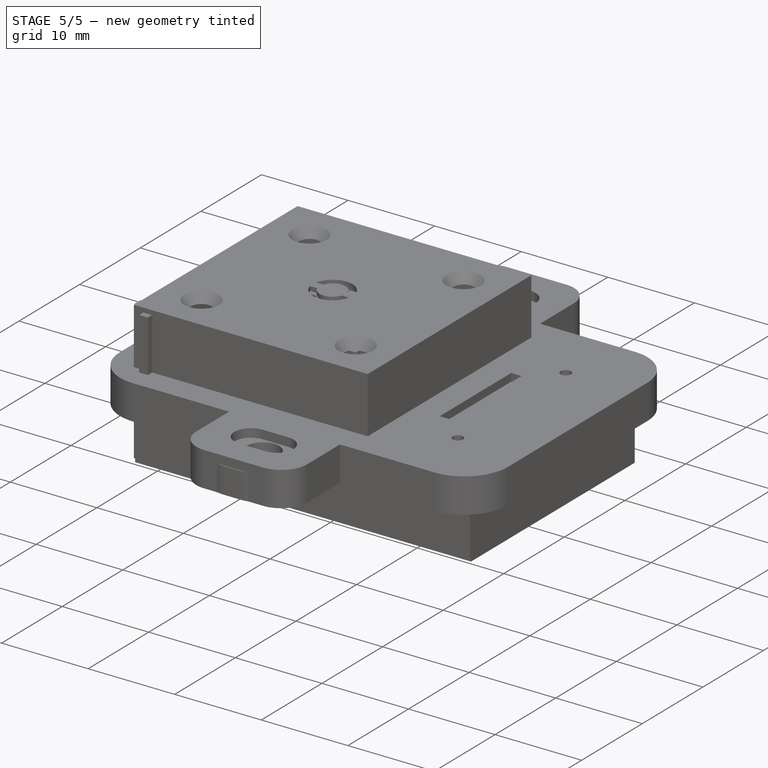
[diagram: stage 5 of 5 — iso view after this stage's code; geometry added in this stage tinted green]
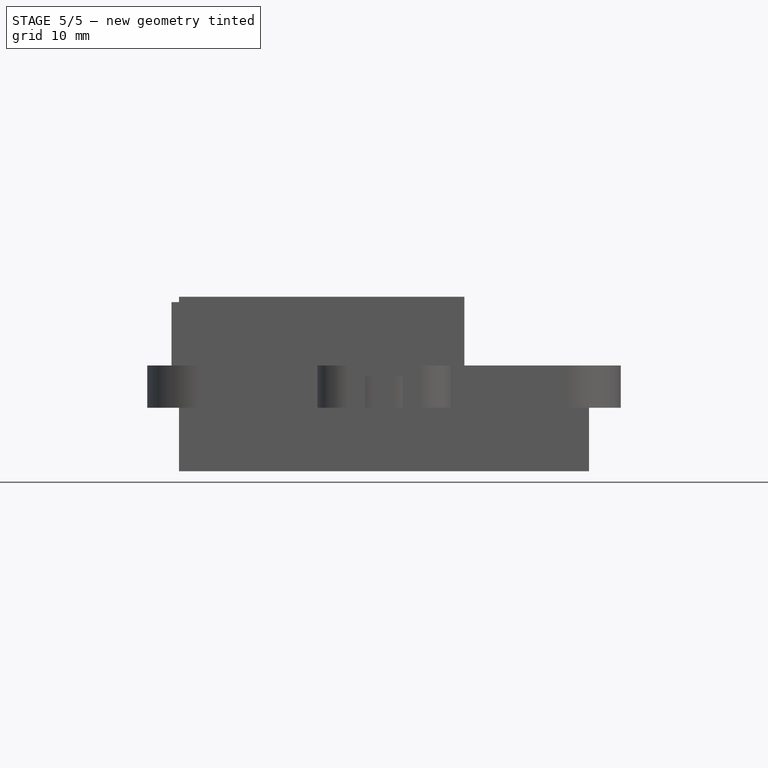
[diagram: stage 5 of 5 — front view after this stage's code; geometry added in this stage tinted green]
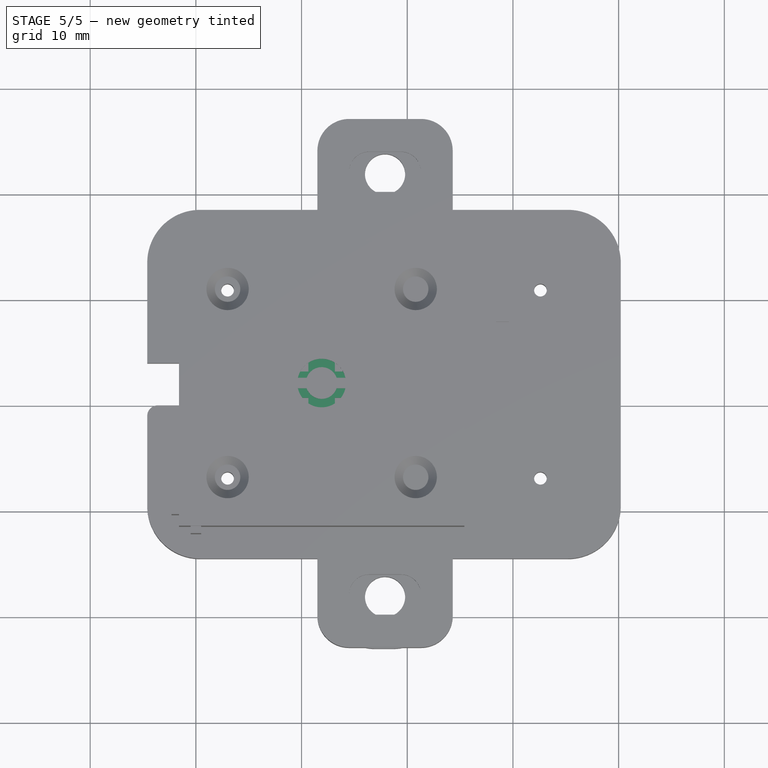
[diagram: stage 5 of 5 — top view after this stage's code; geometry added in this stage tinted green]
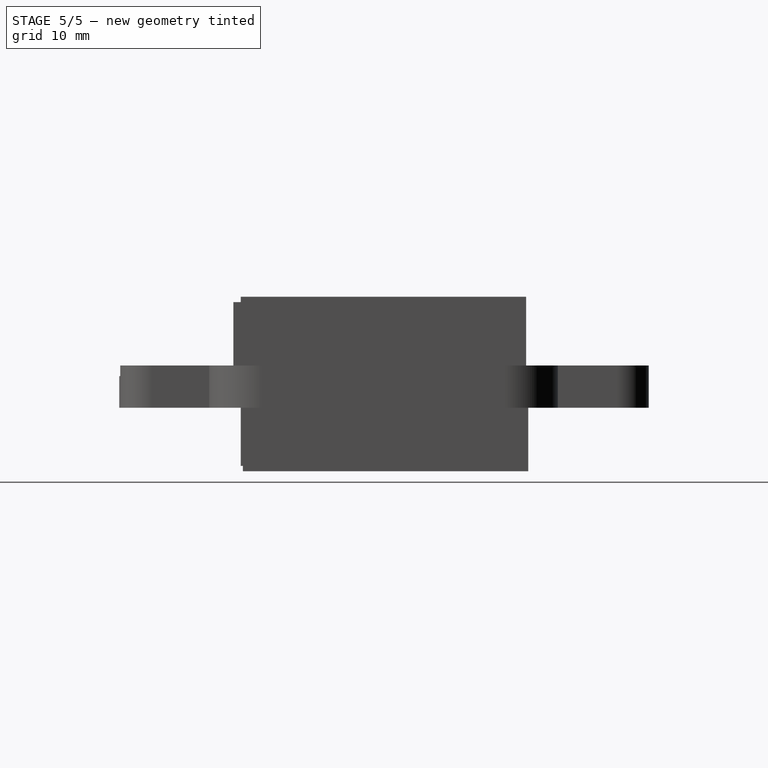
[diagram: stage 5 of 5 — right view after this stage's code; geometry added in this stage tinted green]
FEATURE [Part::Box] Box002  label="outer border cube"
  AttacherType = Attacher::AttachEngine3D
  Height = 2.5
  Length = 35.6
  Width = 23.8
  expr: Length = 2 * <<p>>.side_border + (<<p>>.btn_body_side + <<p>>.inter_btn_dist) * <<p>>.btn_count_x
  expr: Width = 2 * <<p>>.side_border + (<<p>>.btn_body_side + <<p>>.inter_btn_dist) * <<p>>.btn_count_y
  expr: Height = <<p>>.holding_plate_z + <<p>>.holding_plate_extra_border_z
FEATURE [Part::Box] Box004  label="y btn holder"
  AttacherType = Attacher::AttachEngine3D
  Height = 1.5
  Length = 2.5
  Width = 23.8
  expr: Length = <<p>>.holding_w
  expr: Width = 2 * <<p>>.side_border + <<p>>.btn_area_y
  expr: Height = <<p>>.holding_plate_z
FEATURE [Part::Box] Box005  label="x btn holder"
  AttacherType = Attacher::AttachEngine3D
  Height = 1.5
  Length = 35.6
  Width = 2.5
  expr: Width = <<p>>.holding_w
  expr: Length = 2 * <<p>>.side_border + <<p>>.btn_area_x
  expr: Height = <<p>>.holding_plate_z
FEATURE [Part::FeaturePython] Array002  label="x btn holder array"  # Draft array (typed FeaturePython)
  Angle = 360
  ArrayType = 0
  Axis = (0,0,1)
  Base = -> Box005
  Center = (0,0,0)
  Fuse = false
  IntervalAxis = (0,0,0)
  IntervalX = (1,0,0)
  IntervalY = (0,11.8,0)
  IntervalZ = (0,0,1)
  NumberPolar = 1
  NumberX = 1
  NumberY = 1
  NumberZ = 1
  Placement = pos=(0,10.65,0) rot=(0,0,1;0rad)
  expr: .Placement.Base.y = <<p>>.side_border + <<p>>.inter_btn_dist / 2 + <<p>>.btn_body_side / 2 - <<p>>.holding_w / 2
  expr: NumberY = <<p>>.btn_count_y
  expr: .IntervalY.y = <<p>>.btn_body_side + <<p>>.inter_btn_dist
FEATURE [Part::FeaturePython] Array003  label="y btn holder array"  # Draft array (typed FeaturePython)
  Angle = 360
  ArrayType = 0
  Axis = (0,0,1)
  Base = -> Box004
  Center = (0,0,0)
  Fuse = false
  IntervalAxis = (0,0,0)
  IntervalX = (11.8,0,0)
  IntervalY = (0,1,0)
  IntervalZ = (0,0,1)
  NumberPolar = 1
  NumberX = 2
  NumberY = 1
  NumberZ = 1
  Placement = pos=(10.65,0,0) rot=(0,0,1;0rad)
  expr: .Placement.Base.x = <<p>>.side_border + <<p>>.inter_btn_dist / 2 + <<p>>.btn_body_side / 2 - <<p>>.holding_w / 2
  expr: NumberX = <<p>>.btn_count_x
  expr: .IntervalX.x = <<p>>.btn_body_side + <<p>>.inter_btn_dist
FEATURE [Part::Cut] Cut001  label="mesh border cut"
  Base = -> Box002
  Tool = -> Fusion003
FEATURE [PartDesign::FeatureBase] Clone
  BaseFeature = -> Cut001
FEATURE [Part::FeaturePython] Array004  label="btn round hole array"  # Draft array (typed FeaturePython)
  Angle = 360
  ArrayType = 0
  Axis = (0,0,1)
  Base = -> Cut006
  Center = (0,0,0)
  Fuse = false
  IntervalAxis = (0,0,0)
  IntervalX = (11.8,0,0)
  IntervalY = (0,11.8,0)
  IntervalZ = (0,0,1)
  NumberPolar = 1
  NumberX = 2
  NumberY = 1
  NumberZ = 1
  Placement = pos=(11.9,11.9,0) rot=(0,0,1;0rad)
  expr: NumberY = <<p>>.btn_count_y
  expr: NumberX = <<p>>.btn_count_x
  expr: .Placement.Base.y = <<p>>.side_border + <<p>>.inter_btn_dist / 2 + <<p>>.btn_body_side / 2
  expr: .Placement.Base.x = <<p>>.side_border + <<p>>.inter_btn_dist / 2 + <<p>>.btn_body_side / 2
  expr: .IntervalY.y = <<p>>.btn_body_side + <<p>>.inter_btn_dist
  expr: .IntervalX.x = <<p>>.btn_body_side + <<p>>.inter_btn_dist
FEATURE [Part::MultiFuse] Fusion002  label="y mesh holder fusion"
  Shapes = -> [Array003,Body,Array010]
FEATURE [Part::MultiFuse] Fusion001  label="x mesh holder fusion"
  Shapes = -> [Array002,Cut001,Array011]
FEATURE [Part::MultiFuse] Fusion004  label="top hole fusion"
  Shapes = -> [Array004,Array012]
FEATURE [Part::Cut] Cut002  label="top cover plate cut"
  Base = -> Fusion012
  Tool = -> Fusion004
FEATURE [Part::MultiFuse] Fusion005  label="top cover plate fusion"
  Shapes = -> [Cut002,Cut004]
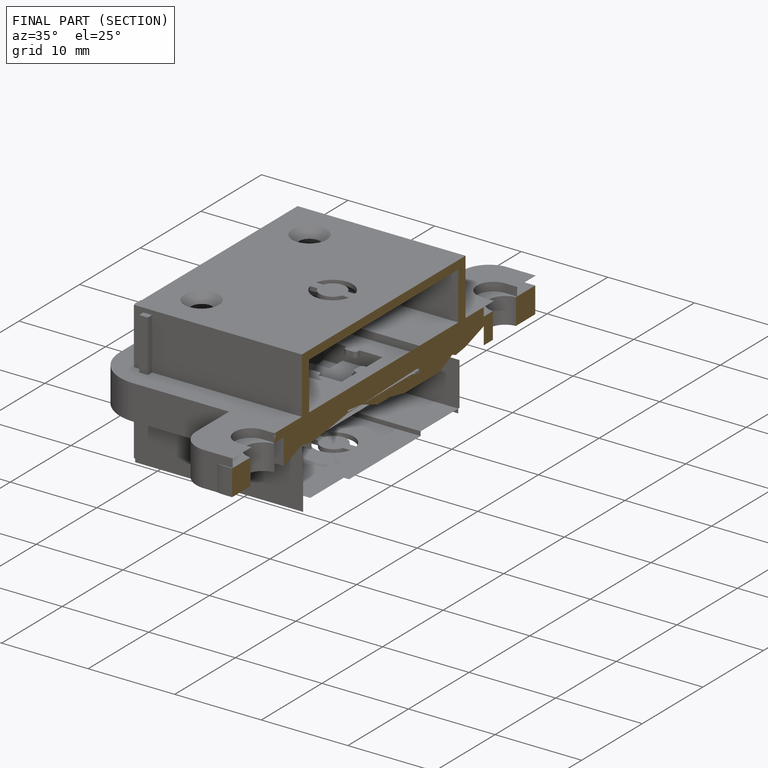
[diagram: finished part — half-section view (interior)]
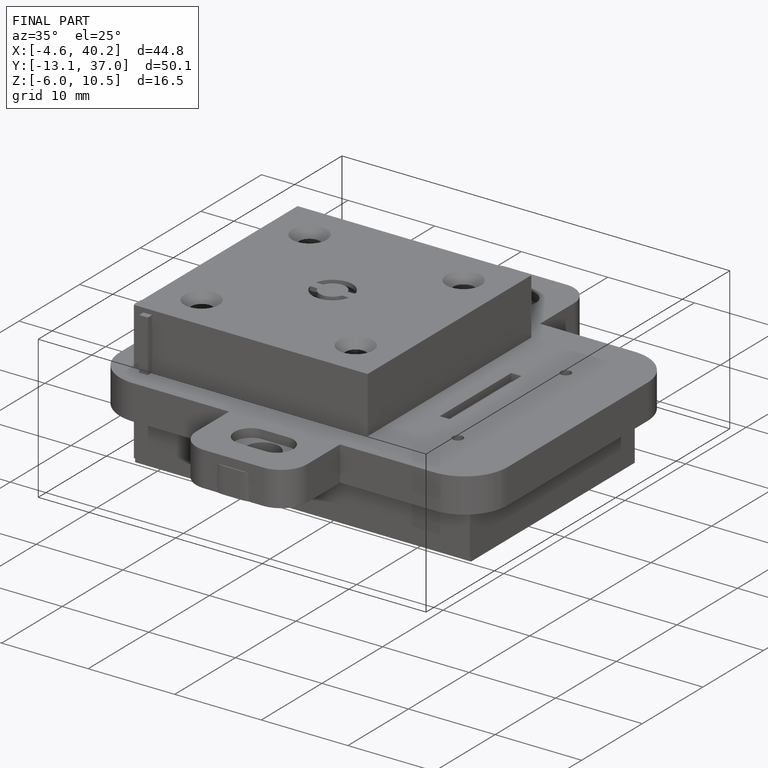
[diagram: finished part — iso view with bounding-box wireframe]
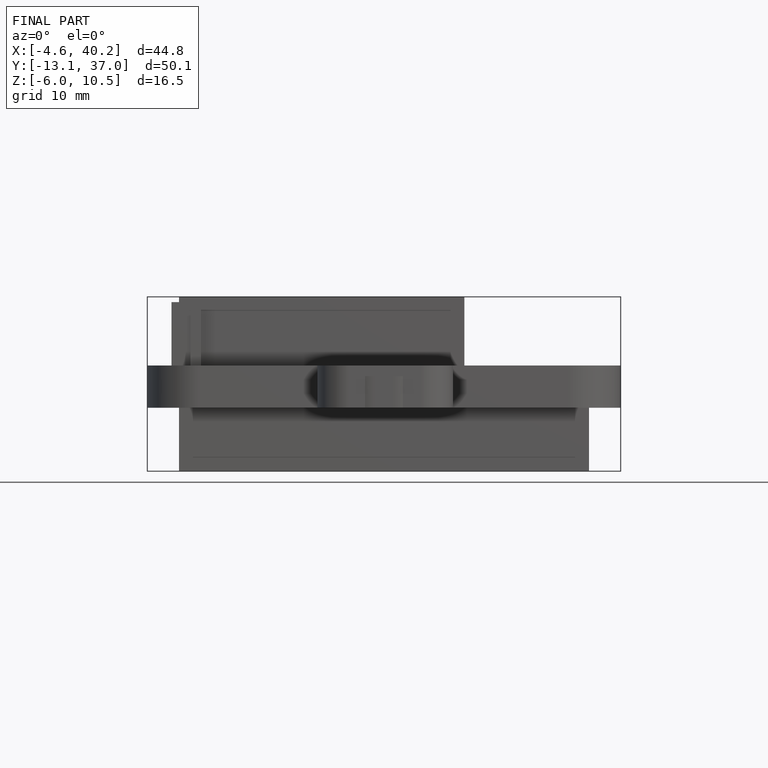
[diagram: finished part — front view with bounding-box wireframe]
